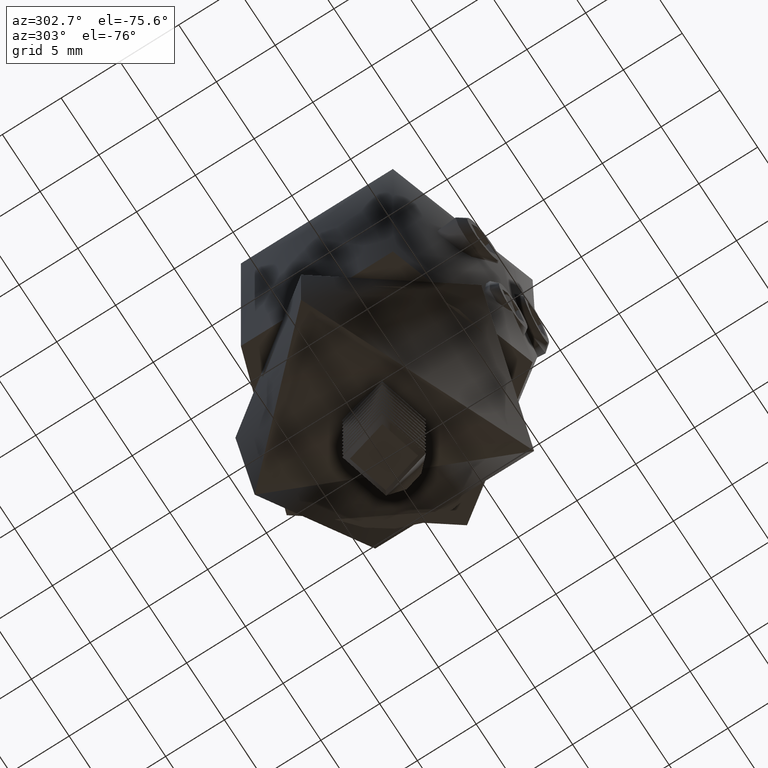
[diagram: clean part render]
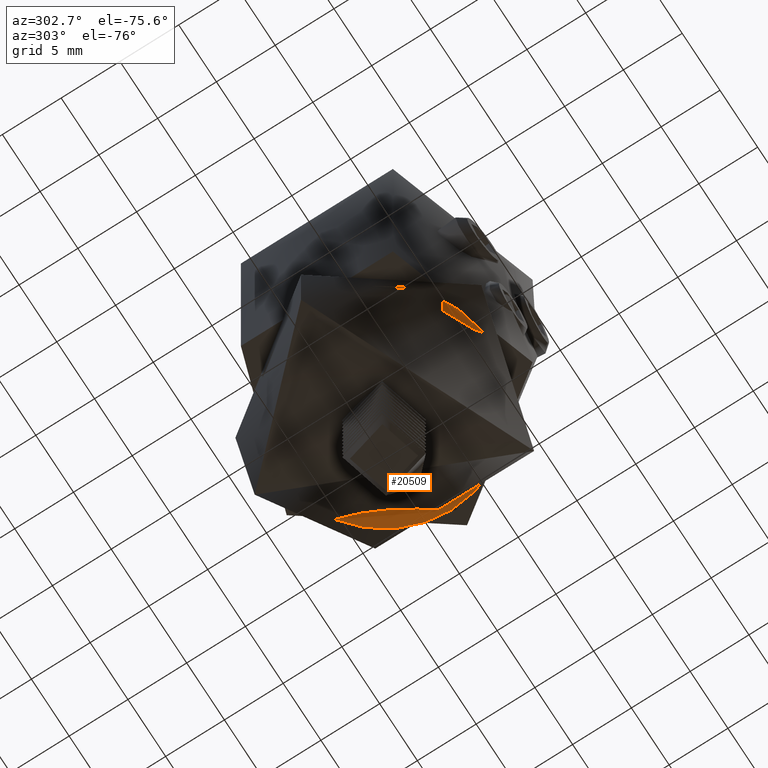
[diagram: same view with one face highlighted and labeled with its STEP entity id]
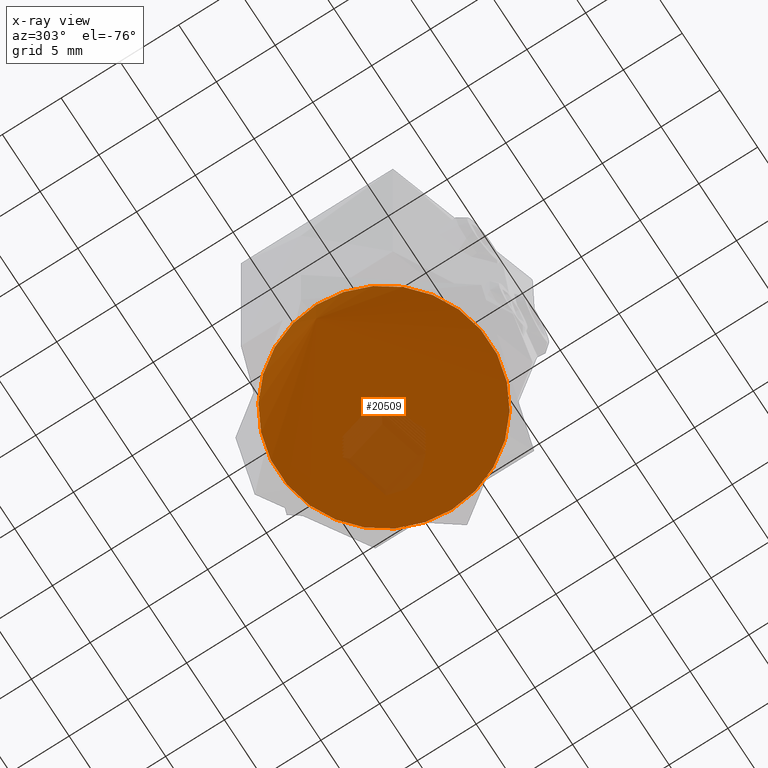
[diagram: x-ray of the same camera — body ghosted, the highlighted face saturated]
A machine part, auxiliary view. The second image highlights one B-rep face of the part: STEP entity #20509.
The next image is the same camera in x-ray: the body ghosted, the highlighted face saturated — about 12% of this face is hidden behind the body in this view.
In plain terms, the highlighted cylindrical surface (bore or boss wall) has radius 9 mm, axis along (-0, -0, -1).
Its self-contained STEP definition (entity closure, byte-faithful):
#590 = CARTESIAN_POINT ( 'NONE',  ( -6.766048313375106800, -5.941849588956704200, -5.207737569877101800 ) ) ;
#763 = CARTESIAN_POINT ( 'NONE',  ( -6.570051494431052900, 6.157908511444631500, -5.142585294229899500 ) ) ;
#859 = CARTESIAN_POINT ( 'NONE',  ( 1.496328371181378400, 8.879702304195813400, -4.150857130149487900 ) ) ;
#959 = CARTESIAN_POINT ( 'NONE',  ( -8.880462410946025300, 1.491469006224789700, -6.049506213162343800 ) ) ;
#1058 = CARTESIAN_POINT ( 'NONE',  ( -8.533054436092358600, 2.922138815264545100, -5.891528669452684500 ) ) ;
#1161 = CARTESIAN_POINT ( 'NONE',  ( 7.633095921920670400, -4.777164185214712000, -5.521066813696612600 ) ) ;
#1481 = CARTESIAN_POINT ( 'NONE',  ( 4.527725506764323200, -7.799994965017364600, -4.583139751377061100 ) ) ;
#1640 = FACE_OUTER_BOUND ( 'NONE', #3841, .T. ) ;
#2808 = CARTESIAN_POINT ( 'NONE',  ( -6.161404844027698500, -6.566661741195217900, -5.013965487062177000 ) ) ;
#2975 = CARTESIAN_POINT ( 'NONE',  ( -7.311472419907164300, 5.256110834363017400, -5.399942953120392600 ) ) ;
#3068 = CARTESIAN_POINT ( 'NONE',  ( -5.501311983712244400, 7.146811310810098100, -4.820136018022904700 ) ) ;
#3168 = CARTESIAN_POINT ( 'NONE',  ( 5.507888469158010600, 7.141587104885530800, -4.821951802872820100 ) ) ;
#3271 = CARTESIAN_POINT ( 'NONE',  ( 8.702408039283348300, -2.372073640349042100, -5.968027577799811700 ) ) ;
#3369 = CARTESIAN_POINT ( 'NONE',  ( 2.930983491255340700, 8.529688198176645000, -4.296378237583076600 ) ) ;
#3498 = CARTESIAN_POINT ( 'NONE',  ( 5.496644906564072600, -7.150322684329967900, -4.818899160525555600 ) ) ;
#3841 = EDGE_LOOP ( 'NONE', ( #7314 ) ) ;
#3945 = CARTESIAN_POINT ( 'NONE',  ( 1.183904790595066100, -8.926821845496235100, -4.130979375828014000 ) ) ;
#4938 = CARTESIAN_POINT ( 'NONE',  ( -8.940179620051697600, -1.192762043537303600, -6.076847759062600200 ) ) ;
#5122 = CARTESIAN_POINT ( 'NONE',  ( -2.069273427123897500, -8.763926665609215400, -4.199204624531772000 ) ) ;
#5198 = CARTESIAN_POINT ( 'NONE',  ( -8.705287611884937600, 2.359308650723922300, -5.969338804076958400 ) ) ;
#5298 = CARTESIAN_POINT ( 'NONE',  ( -1.177433114945627600, 8.942818534641482100, -4.124482320378102300 ) ) ;
#5397 = CARTESIAN_POINT ( 'NONE',  ( -2.919603497746496900, 8.533584350906096500, -4.294788581318374400 ) ) ;
#5491 = CARTESIAN_POINT ( 'NONE',  ( -4.005712576156161800, 8.080867107885596900, -4.474600650052567000 ) ) ;
#5597 = CARTESIAN_POINT ( 'NONE',  ( 7.143967367260362500, -5.505046255798366600, -5.336905660156291200 ) ) ;
#5747 = CARTESIAN_POINT ( 'NONE',  ( 2.915995473697134500, -8.535217117214015700, -4.294146457838613700 ) ) ;
#5843 = CARTESIAN_POINT ( 'NONE',  ( 4.012651566003441400, -8.077845520338664500, -4.475794371760390100 ) ) ;
#6888 = CARTESIAN_POINT ( 'NONE',  ( -7.136393349933627800, -5.491527681049624300, -5.336275164817630300 ) ) ;
#7170 = CARTESIAN_POINT ( 'NONE',  ( -8.417805771125094000, -3.197972917069187700, -5.842463500720281600 ) ) ;
#7258 = CARTESIAN_POINT ( 'NONE',  ( -5.497450429022881800, -7.131813691955859000, -4.823855749445251600 ) ) ;
#7314 = ORIENTED_EDGE ( 'NONE', *, *, #23627, .F. ) ;
#7428 = CARTESIAN_POINT ( 'NONE',  ( 7.786055058421181000, -4.523650702319240900, -5.580978259992661200 ) ) ;
#7487 = FACE_OUTER_BOUND ( 'NONE', #18106, .T. ) ;
#7521 = CARTESIAN_POINT ( 'NONE',  ( -8.999999999999998200, -4.336808689942017700E-016, -6.105209039950447700 ) ) ;
#7611 = CARTESIAN_POINT ( 'NONE',  ( 0.5875516269330853800, -8.985797788739242600, -4.106042185908238600 ) ) ;
#7617 = CARTESIAN_POINT ( 'NONE',  ( -2.354678229249702600, 8.707229325129510800, -4.222894217259153000 ) ) ;
#7721 = CARTESIAN_POINT ( 'NONE',  ( 6.773075127230495000, 5.933833905163503200, -5.210108331659411000 ) ) ;
#7751 = DIRECTION ( 'NONE',  ( -1.000000000000000000, 0.0000000000000000000, 0.0000000000000000000 ) ) ;
#7833 = DIRECTION ( 'NONE',  ( -1.000000000000000000, 0.0000000000000000000, 0.0000000000000000000 ) ) ;
#8417 = CARTESIAN_POINT ( 'NONE',  ( -1.195367113660796400, -8.940039705118067600, -4.125653978507203100 ) ) ;
#8700 = CARTESIAN_POINT ( 'NONE',  ( -0.6064474908965829000, -8.999256637721655800, -4.100315578128660700 ) ) ;
#9384 = CARTESIAN_POINT ( 'NONE',  ( -7.801320390038437600, -4.525699097909323700, -5.584505830986996600 ) ) ;
#9547 = CARTESIAN_POINT ( 'NONE',  ( -7.138145225870883500, 5.489248663871809900, -5.336902390178999600 ) ) ;
#9639 = CARTESIAN_POINT ( 'NONE',  ( -8.984718648477109300, 0.6034601397220131800, -6.098023013587534200 ) ) ;
#9929 = CARTESIAN_POINT ( 'NONE',  ( 4.783214464045441300, 7.629261748838103200, -4.645153529278331900 ) ) ;
#10414 = AXIS2_PLACEMENT_3D ( 'NONE', #18963, #23269, #7833 ) ;
#11263 = CYLINDRICAL_SURFACE ( 'NONE', #24708, 8.999999999999998200 ) ;
#11481 = CARTESIAN_POINT ( 'NONE',  ( -8.519085452557781900, -2.917802884023282100, -5.886750800336528800 ) ) ;
#11737 = CARTESIAN_POINT ( 'NONE',  ( 5.955765860730115200, 6.772806331197206700, -4.949163426065095600 ) ) ;
#11840 = CARTESIAN_POINT ( 'NONE',  ( 8.064130121432253200, -4.006978217306454800, -5.693055384883214400 ) ) ;
#12035 = CARTESIAN_POINT ( 'NONE',  ( -8.075678375321279700, 4.016880884885597200, -5.696806480158374000 ) ) ;
#12140 = CARTESIAN_POINT ( 'NONE',  ( 8.939971974155945100, -1.198140283409449900, -6.076733770865095300 ) ) ;
#13273 = EDGE_CURVE ( 'NONE', #13831, #13831, #19163, .T. ) ;
#13831 = VERTEX_POINT ( 'NONE', #28388 ) ;
#13955 = CARTESIAN_POINT ( 'NONE',  ( 7.790441516584820600, 4.516112634829499800, -5.582711630924207700 ) ) ;
#14049 = CARTESIAN_POINT ( 'NONE',  ( 6.575604964608817900, 6.151986061130800800, -5.144396724207851400 ) ) ;
#14146 = CARTESIAN_POINT ( 'NONE',  ( 8.999172276844687300, -0.6052519994996052900, -6.104820939877708200 ) ) ;
#14253 = CARTESIAN_POINT ( 'NONE',  ( 8.536066545482773500, 2.912700169554780100, -5.892880292925772400 ) ) ;
#14350 = CARTESIAN_POINT ( 'NONE',  ( 8.189956734736409100, -3.743000991661148600, -5.745470069114856100 ) ) ;
#15148 = CARTESIAN_POINT ( 'NONE',  ( -2.928297529281811000, -8.515469180634774200, -4.301264842937778900 ) ) ;
#15330 = CIRCLE ( 'NONE', #10414, 8.999999999999998200 ) ;
#15993 = CARTESIAN_POINT ( 'NONE',  ( -6.571030345259965000, -6.156745591378432400, -5.142925159791035500 ) ) ;
#16157 = CARTESIAN_POINT ( 'NONE',  ( -6.767985068317843300, 5.939641931502982300, -5.208390767290663500 ) ) ;
#16249 = CARTESIAN_POINT ( 'NONE',  ( -4.531143009220556900, 7.798082359429833400, -4.583870890236023700 ) ) ;
#16349 = CARTESIAN_POINT ( 'NONE',  ( 1.198462509687663300, 8.924876651340714100, -4.131800132847653900 ) ) ;
#16448 = CARTESIAN_POINT ( 'NONE',  ( 8.528391803012048900, -2.933994583505465500, -5.889521855624834300 ) ) ;
#16544 = CARTESIAN_POINT ( 'NONE',  ( 4.532780756239583700, 7.780812614444888800, -4.588547621772297800 ) ) ;
#16862 = CARTESIAN_POINT ( 'NONE',  ( 0.0000000000000000000, 0.0000000000000000000, -2.100000000000000100 ) ) ;
#18092 = CARTESIAN_POINT ( 'NONE',  ( -8.999999999999998200, -0.6022301676324370900, -6.105209039950445900 ) ) ;
#18106 = EDGE_LOOP ( 'NONE', ( #24576 ) ) ;
#18184 = CARTESIAN_POINT ( 'NONE',  ( -5.946797421235012300, -6.761680869955747600, -4.949814619520468600 ) ) ;
#18211 = CARTESIAN_POINT ( 'NONE',  ( 2.349030549496113900, -8.708199343826665400, -4.222486883313147000 ) ) ;
#18354 = CARTESIAN_POINT ( 'NONE',  ( -7.796916004019780500, 4.532705707074541100, -5.582807033181328600 ) ) ;
#18454 = CARTESIAN_POINT ( 'NONE',  ( 3.745224452304392000, 8.189008184627280000, -4.431627000577344200 ) ) ;
#18650 = CARTESIAN_POINT ( 'NONE',  ( 0.6023502318451234800, 8.984815514353627500, -4.106459186793927100 ) ) ;
#18742 = CARTESIAN_POINT ( 'NONE',  ( -0.5856921983027960600, 9.000526453280953000, -4.099776505755870400 ) ) ;
#18963 = CARTESIAN_POINT ( 'NONE',  ( 0.0000000000000000000, 0.0000000000000000000, -2.099999999999999600 ) ) ;
#19078 = DIRECTION ( 'NONE',  ( -0.0000000000000000000, -0.0000000000000000000, -1.000000000000000000 ) ) ;
#19132 = CARTESIAN_POINT ( 'NONE',  ( -4.529556461873095700, -7.799281068273511000, -4.583449115028530600 ) ) ;
#19159 = CARTESIAN_POINT ( 'NONE',  ( 5.953767838570621900, -6.774246431175877000, -4.948631012675688700 ) ) ;
#19163 = B_SPLINE_CURVE_WITH_KNOTS ( 'NONE', 3,
 ( #20215, #18092, #4938, #26934, #22414, #11481, #7170, #20406, #9384, #24719, #6888, #590, #15993, #2808, #18184, #7258, #23240, #19132, #22912, #23502, #15148, #21966, #5122, #8417, #8700, #22482, #7611, #3945, #24659, #18211, #5747, #5843, #1481, #3498, #19159, #27494, #5597, #1161, #7428, #11840, #14350, #16448, #3271, #12140, #14146, #25275, #24982, #27397, #20961, #22864, #14253, #27196, #20866, #13955, #22667, #23053, #24887, #7721, #14049, #11737, #3168, #9929, #16544, #27299, #18454, #3369, #25173, #859, #16349, #18650, #27098, #18742, #5298, #7617, #5397, #5491, #16249, #3068, #22763, #763, #16157, #9547, #2975, #18354, #12035, #1058, #5198, #959, #20563, #9639, #20659, #7521 ),
 .UNSPECIFIED., .T., .F.,
 ( 4, 2, 2, 2, 2, 2, 2, 2, 2, 2, 2, 2, 2, 2, 2, 2, 2, 2, 2, 2, 2, 2, 2, 2, 2, 2, 2, 2, 2, 2, 2, 2, 2, 2, 2, 2, 2, 2, 2, 2, 2, 2, 2, 2, 2, 4 ),
 ( 0.0000000000000000000, 0.001779121269481612600, 0.002668681904222417900, 0.003558242538963223500, 0.005337363808444834900, 0.006226924443185639200, 0.007116485077926443600, 0.008006045712667248000, 0.008895606347408054100, 0.01067472761688966300, 0.01156428825163046700, 0.01245384888637127200, 0.01423297015585288200, 0.01512253079059368600, 0.01601209142533449200, 0.01779121269481610800, 0.01957033396429772000, 0.02134945523377933300, 0.02312857650326094500, 0.02401813713800174700, 0.02490769777274255700, 0.02668681904222416900, 0.02846594031170578100, 0.02935550094644658700, 0.03024506158118739000, 0.03202418285066900600, 0.03291374348540981200, 0.03380330412015061100, 0.03469286475489141700, 0.03558242538963221600, 0.03736154665911381500, 0.03825110729385462100, 0.03914066792859542700, 0.04091978919807702500, 0.04180934983281783100, 0.04269891046755863000, 0.04447803173704023600, 0.04625715300652184100, 0.04803627427600344600, 0.04981539554548505800, 0.05070495618022586400, 0.05159451681496666400, 0.05337363808444828300, 0.05515275935392988800, 0.05604231998867070100, 0.05693188062341150000 ),
 .UNSPECIFIED. ) ;
#20215 = CARTESIAN_POINT ( 'NONE',  ( -8.999999999999998200, -4.336808689942017700E-016, -6.105209039950447700 ) ) ;
#20406 = CARTESIAN_POINT ( 'NONE',  ( -8.077715715060875800, -4.012037878863899300, -5.697672808785785700 ) ) ;
#20509 = ADVANCED_FACE ( 'NONE', ( #7487, #1640 ), #11263, .F. ) ;
#20563 = CARTESIAN_POINT ( 'NONE',  ( -8.924885096745489600, 1.198231756554560800, -6.070140005998572600 ) ) ;
#20659 = CARTESIAN_POINT ( 'NONE',  ( -8.999999999999998200, 0.3011150838162157100, -6.105209039950447700 ) ) ;
#20866 = CARTESIAN_POINT ( 'NONE',  ( 8.068293523425875700, 3.998611255628528900, -5.694769083929055700 ) ) ;
#20961 = CARTESIAN_POINT ( 'NONE',  ( 8.883445497185357800, 1.474070503388015000, -6.050882716875976900 ) ) ;
#21966 = CARTESIAN_POINT ( 'NONE',  ( -2.360735361079838100, -8.689940755913459800, -4.229909037420219100 ) ) ;
#22414 = CARTESIAN_POINT ( 'NONE',  ( -8.693075955343484700, -2.349217114833196600, -5.964036308711038200 ) ) ;
#22482 = CARTESIAN_POINT ( 'NONE',  ( 0.2865226143655705300, -9.000361350476717700, -4.099846596592881200 ) ) ;
#22667 = CARTESIAN_POINT ( 'NONE',  ( 7.639907694094669700, 4.766181298621799700, -5.523707296290868200 ) ) ;
#22763 = CARTESIAN_POINT ( 'NONE',  ( -5.950024793402113800, 6.777821217551548600, -4.947482170566961400 ) ) ;
#22864 = CARTESIAN_POINT ( 'NONE',  ( 8.708359458168317200, 2.349133148422245300, -5.970722831128997900 ) ) ;
#22912 = CARTESIAN_POINT ( 'NONE',  ( -4.015580886328729400, -8.075779872960255900, -4.476572724249879600 ) ) ;
#23053 = CARTESIAN_POINT ( 'NONE',  ( 7.316073530914030300, 5.249737311130735100, -5.401632962292480600 ) ) ;
#23240 = CARTESIAN_POINT ( 'NONE',  ( -5.261681691625372400, -7.307607166974759300, -4.761796661982787200 ) ) ;
#23269 = DIRECTION ( 'NONE',  ( -0.0000000000000000000, -0.0000000000000000000, -1.000000000000000000 ) ) ;
#23502 = CARTESIAN_POINT ( 'NONE',  ( -3.205093018567955400, -8.415055338208809100, -4.341889825580585300 ) ) ;
#23627 = EDGE_CURVE ( 'NONE', #27544, #27544, #15330, .T. ) ;
#24576 = ORIENTED_EDGE ( 'NONE', *, *, #13273, .F. ) ;
#24659 = CARTESIAN_POINT ( 'NONE',  ( 1.478072324521911000, -8.882734505041488800, -4.149582081430979800 ) ) ;
#24708 = AXIS2_PLACEMENT_3D ( 'NONE', #16862, #19078, #7751 ) ;
#24719 = CARTESIAN_POINT ( 'NONE',  ( -7.312433258681626700, -5.254898464817231700, -5.400285243842547300 ) ) ;
#24887 = CARTESIAN_POINT ( 'NONE',  ( 7.142772226264597200, 5.483223177737658100, -5.338559700049895400 ) ) ;
#24982 = CARTESIAN_POINT ( 'NONE',  ( 8.986205239822110600, 0.5808486025061188100, -6.098720092987603500 ) ) ;
#25173 = CARTESIAN_POINT ( 'NONE',  ( 2.369100941744506400, 8.702862009132202200, -4.224698540167210600 ) ) ;
#25275 = CARTESIAN_POINT ( 'NONE',  ( 9.000400974029080500, 0.2839722160764800400, -6.105397047312539600 ) ) ;
#26274 = CARTESIAN_POINT ( 'NONE',  ( -8.999999999999998200, 0.0000000000000000000, -2.099999999999999600 ) ) ;
#26934 = CARTESIAN_POINT ( 'NONE',  ( -8.765548746403897700, -2.062165950460746400, -5.996910775638053100 ) ) ;
#27098 = CARTESIAN_POINT ( 'NONE',  ( 0.3048979933382200400, 8.999731393797215900, -4.100114030898146700 ) ) ;
#27196 = CARTESIAN_POINT ( 'NONE',  ( 8.195999223167366000, 3.729967871242132500, -5.747998092720919800 ) ) ;
#27299 = CARTESIAN_POINT ( 'NONE',  ( 4.013155420945843800, 8.061124604704581000, -4.481620030197767300 ) ) ;
#27397 = CARTESIAN_POINT ( 'NONE',  ( 8.927896380613049100, 1.175557709462170100, -6.071539299863844400 ) ) ;
#27494 = CARTESIAN_POINT ( 'NONE',  ( 6.775583308319266300, -5.952246384174823200, -5.207288834857331800 ) ) ;
#27544 = VERTEX_POINT ( 'NONE', #26274 ) ;
#28388 = CARTESIAN_POINT ( 'NONE',  ( -8.999999999999998200, 0.0000000000000000000, -6.105209039950445900 ) ) ;